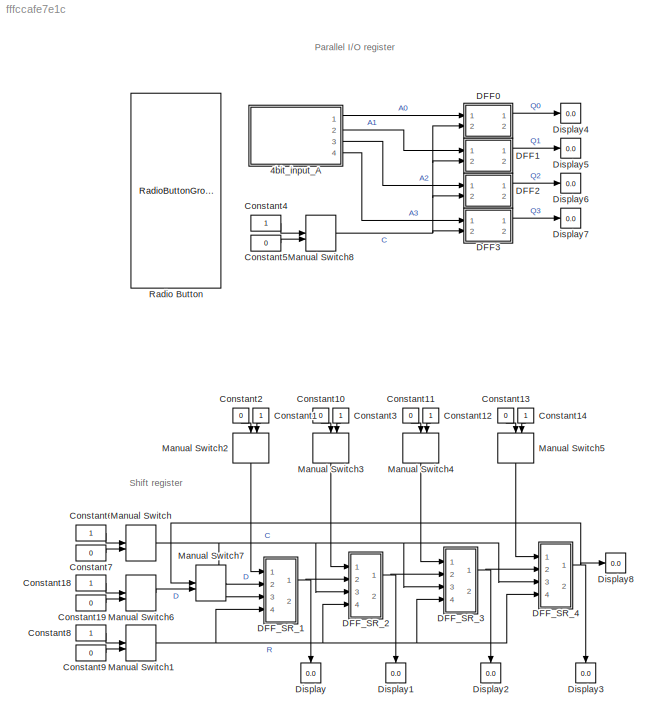
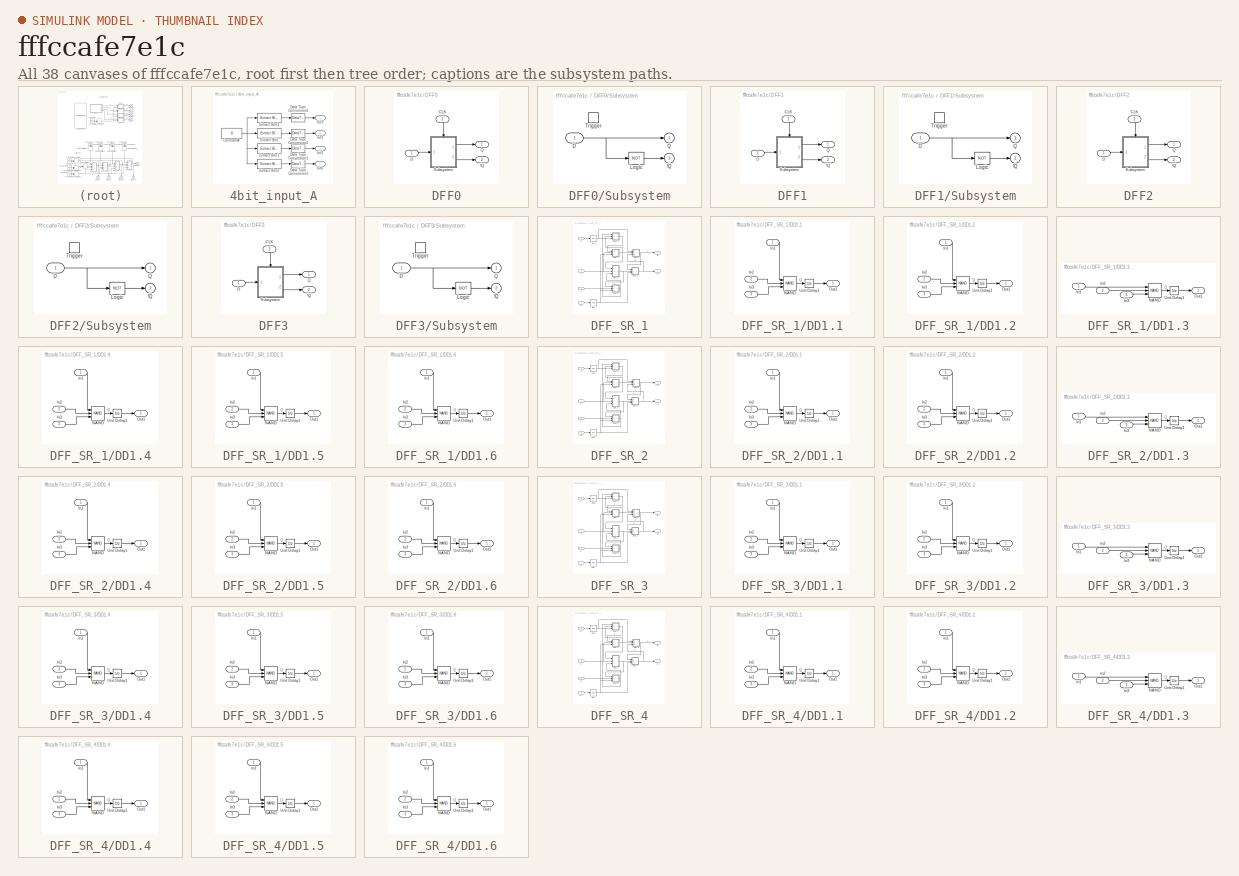
[diagram: thumbnail index - all 38 canvases of the model, root first then tree order]
MODEL slx_fffccafe7e1c
KIND model
CONFIG AbsTol = auto
CONFIG EnableMultiTasking = off
CONFIG FixedStep = 1
CONFIG MaxStep = 1
CONFIG MinStep = auto
CONFIG RelTol = 1e-3
CONFIG SampleTimeConstraint = Unconstrained
CONFIG Solver = FixedStepAuto
CONFIG SolverName = FixedStepAuto
CONFIG StartTime = 0.0
CONFIG StopTime = inf
BLOCK [SubSystem] 4bit_input_A
  Ports = [0, 4]
  RequestExecContextInheritance = off
BLOCK [Constant] 4bit_input_A/ConstantA
  OutDataTypeStr = uint8
  OutMax = 15
  OutMin = 0
  Value = 0
BLOCK [DataTypeConversion] 4bit_input_A/Data Type Conversion1
  OutDataTypeStr = boolean
  RndMeth = Floor
  SaturateOnIntegerOverflow = off
BLOCK [DataTypeConversion] 4bit_input_A/Data Type Conversion2
  OutDataTypeStr = boolean
  RndMeth = Floor
  SaturateOnIntegerOverflow = off
BLOCK [DataTypeConversion] 4bit_input_A/Data Type Conversion3
  OutDataTypeStr = boolean
  RndMeth = Floor
  SaturateOnIntegerOverflow = off
BLOCK [DataTypeConversion] 4bit_input_A/Data Type Conversion4
  OutDataTypeStr = boolean
  RndMeth = Floor
  SaturateOnIntegerOverflow = off
BLOCK [Reference] 4bit_input_A/Extract Bits  REF=simulink/Logic and Bit
Operations/Extract Bits
  Ports = [1, 1]
  SourceBlock = simulink/Logic and Bit\nOperations/Extract Bits
  SourceProductBaseCode = SL
  SourceProductName = Simulink
  SourceType = Extract Bits
BLOCK [Reference] 4bit_input_A/Extract Bits1  REF=simulink/Logic and Bit
Operations/Extract Bits
  Ports = [1, 1]
  SourceBlock = simulink/Logic and Bit\nOperations/Extract Bits
  SourceProductBaseCode = SL
  SourceProductName = Simulink
  SourceType = Extract Bits
BLOCK [Reference] 4bit_input_A/Extract Bits2  REF=simulink/Logic and Bit
Operations/Extract Bits
  Ports = [1, 1]
  SourceBlock = simulink/Logic and Bit\nOperations/Extract Bits
  SourceProductBaseCode = SL
  SourceProductName = Simulink
  SourceType = Extract Bits
BLOCK [Reference] 4bit_input_A/Extract Bits3  REF=simulink/Logic and Bit
Operations/Extract Bits
  Ports = [1, 1]
  SourceBlock = simulink/Logic and Bit\nOperations/Extract Bits
  SourceProductBaseCode = SL
  SourceProductName = Simulink
  SourceType = Extract Bits
BLOCK [Outport] 4bit_input_A/bit0
  IconDisplay = Port number
BLOCK [Outport] 4bit_input_A/bit1
  IconDisplay = Port number
  Port = 2
BLOCK [Outport] 4bit_input_A/bit2
  IconDisplay = Port number
  Port = 3
BLOCK [Outport] 4bit_input_A/bit3
  IconDisplay = Port number
  Port = 4
BLOCK [Constant] Constant1
  OutDataTypeStr = boolean
BLOCK [Constant] Constant10
  OutDataTypeStr = boolean
  Value = 0
BLOCK [Constant] Constant11
  OutDataTypeStr = boolean
  Value = 0
BLOCK [Constant] Constant12
  OutDataTypeStr = boolean
BLOCK [Constant] Constant13
  OutDataTypeStr = boolean
  Value = 0
BLOCK [Constant] Constant14
  OutDataTypeStr = boolean
BLOCK [Constant] Constant18
  OutDataTypeStr = boolean
BLOCK [Constant] Constant19
  OutDataTypeStr = boolean
  Value = 0
BLOCK [Constant] Constant2
  OutDataTypeStr = boolean
  Value = 0
BLOCK [Constant] Constant3
  OutDataTypeStr = boolean
BLOCK [Constant] Constant4
  OutDataTypeStr = boolean
BLOCK [Constant] Constant5
  OutDataTypeStr = boolean
  Value = 0
BLOCK [Constant] Constant6
  OutDataTypeStr = boolean
BLOCK [Constant] Constant7
  OutDataTypeStr = boolean
  Value = 0
BLOCK [Constant] Constant8
  OutDataTypeStr = boolean
BLOCK [Constant] Constant9
  OutDataTypeStr = boolean
  Value = 0
BLOCK [SubSystem] DFF0
  Ports = [2, 2]
  RequestExecContextInheritance = off
BLOCK [Outport] DFF0/!Q
  IconDisplay = Port number
  InitialOutput = 1
  Port = 2
  VectorParamsAs1DForOutWhenUnconnected = off
BLOCK [Inport] DFF0/CLK
  IconDisplay = Port number
  Port = 2
BLOCK [Inport] DFF0/D
  IconDisplay = Port number
BLOCK [Outport] DFF0/Q
  IconDisplay = Port number
  InitialOutput = 0
  VectorParamsAs1DForOutWhenUnconnected = off
BLOCK [SubSystem] DFF0/Subsystem
  Ports = [1, 2, 0, 1]
  RequestExecContextInheritance = off
BLOCK [Outport] DFF0/Subsystem/!Q
  IconDisplay = Port number
  InitialOutput = 1
  OutputWhenDisabled = reset
  Port = 2
  VectorParamsAs1DForOutWhenUnconnected = off
BLOCK [Inport] DFF0/Subsystem/D
  IconDisplay = Port number
  LatchByDelayingOutsideSignal = on
BLOCK [Logic] DFF0/Subsystem/Logic
  Inputs = 1
  Operator = NOT
  Ports = [1, 1]
BLOCK [Outport] DFF0/Subsystem/Q
  IconDisplay = Port number
  InitialOutput = 0
  OutputWhenDisabled = reset
  VectorParamsAs1DForOutWhenUnconnected = off
BLOCK [TriggerPort] DFF0/Subsystem/Trigger
  Ports = []
  StatesWhenEnabling = reset
  VariantControl = Variant
BLOCK [SubSystem] DFF1
  Ports = [2, 2]
  RequestExecContextInheritance = off
BLOCK [Outport] DFF1/!Q
  IconDisplay = Port number
  InitialOutput = 1
  Port = 2
  VectorParamsAs1DForOutWhenUnconnected = off
BLOCK [Inport] DFF1/CLK
  IconDisplay = Port number
  Port = 2
BLOCK [Inport] DFF1/D
  IconDisplay = Port number
BLOCK [Outport] DFF1/Q
  IconDisplay = Port number
  InitialOutput = 0
  VectorParamsAs1DForOutWhenUnconnected = off
BLOCK [SubSystem] DFF1/Subsystem
  Ports = [1, 2, 0, 1]
  RequestExecContextInheritance = off
BLOCK [Outport] DFF1/Subsystem/!Q
  IconDisplay = Port number
  InitialOutput = 1
  OutputWhenDisabled = reset
  Port = 2
  VectorParamsAs1DForOutWhenUnconnected = off
BLOCK [Inport] DFF1/Subsystem/D
  IconDisplay = Port number
  LatchByDelayingOutsideSignal = on
BLOCK [Logic] DFF1/Subsystem/Logic
  Inputs = 1
  Operator = NOT
  Ports = [1, 1]
BLOCK [Outport] DFF1/Subsystem/Q
  IconDisplay = Port number
  InitialOutput = 0
  OutputWhenDisabled = reset
  VectorParamsAs1DForOutWhenUnconnected = off
BLOCK [TriggerPort] DFF1/Subsystem/Trigger
  Ports = []
  StatesWhenEnabling = reset
  VariantControl = Variant
BLOCK [SubSystem] DFF2
  Ports = [2, 2]
  RequestExecContextInheritance = off
BLOCK [Outport] DFF2/!Q
  IconDisplay = Port number
  InitialOutput = 1
  Port = 2
  VectorParamsAs1DForOutWhenUnconnected = off
BLOCK [Inport] DFF2/CLK
  IconDisplay = Port number
  Port = 2
BLOCK [Inport] DFF2/D
  IconDisplay = Port number
BLOCK [Outport] DFF2/Q
  IconDisplay = Port number
  InitialOutput = 0
  VectorParamsAs1DForOutWhenUnconnected = off
BLOCK [SubSystem] DFF2/Subsystem
  Ports = [1, 2, 0, 1]
  RequestExecContextInheritance = off
BLOCK [Outport] DFF2/Subsystem/!Q
  IconDisplay = Port number
  InitialOutput = 1
  OutputWhenDisabled = reset
  Port = 2
  VectorParamsAs1DForOutWhenUnconnected = off
BLOCK [Inport] DFF2/Subsystem/D
  IconDisplay = Port number
  LatchByDelayingOutsideSignal = on
BLOCK [Logic] DFF2/Subsystem/Logic
  Inputs = 1
  Operator = NOT
  Ports = [1, 1]
BLOCK [Outport] DFF2/Subsystem/Q
  IconDisplay = Port number
  InitialOutput = 0
  OutputWhenDisabled = reset
  VectorParamsAs1DForOutWhenUnconnected = off
BLOCK [TriggerPort] DFF2/Subsystem/Trigger
  Ports = []
  StatesWhenEnabling = reset
  VariantControl = Variant
BLOCK [SubSystem] DFF3
  Ports = [2, 2]
  RequestExecContextInheritance = off
BLOCK [Outport] DFF3/!Q
  IconDisplay = Port number
  InitialOutput = 1
  Port = 2
  VectorParamsAs1DForOutWhenUnconnected = off
BLOCK [Inport] DFF3/CLK
  IconDisplay = Port number
  Port = 2
BLOCK [Inport] DFF3/D
  IconDisplay = Port number
BLOCK [Outport] DFF3/Q
  IconDisplay = Port number
  InitialOutput = 0
  VectorParamsAs1DForOutWhenUnconnected = off
BLOCK [SubSystem] DFF3/Subsystem
  Ports = [1, 2, 0, 1]
  RequestExecContextInheritance = off
BLOCK [Outport] DFF3/Subsystem/!Q
  IconDisplay = Port number
  InitialOutput = 1
  OutputWhenDisabled = reset
  Port = 2
  VectorParamsAs1DForOutWhenUnconnected = off
BLOCK [Inport] DFF3/Subsystem/D
  IconDisplay = Port number
  LatchByDelayingOutsideSignal = on
BLOCK [Logic] DFF3/Subsystem/Logic
  Inputs = 1
  Operator = NOT
  Ports = [1, 1]
BLOCK [Outport] DFF3/Subsystem/Q
  IconDisplay = Port number
  InitialOutput = 0
  OutputWhenDisabled = reset
  VectorParamsAs1DForOutWhenUnconnected = off
BLOCK [TriggerPort] DFF3/Subsystem/Trigger
  Ports = []
  StatesWhenEnabling = reset
  VariantControl = Variant
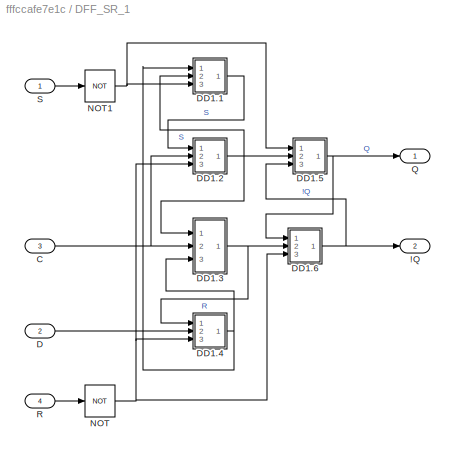
BLOCK [SubSystem] DFF_SR_1
  Ports = [4, 2]
  RequestExecContextInheritance = off
BLOCK [Outport] DFF_SR_1/!Q
  IconDisplay = Port number
  Port = 2
BLOCK [Inport] DFF_SR_1/C
  IconDisplay = Port number
  Port = 3
BLOCK [Inport] DFF_SR_1/D
  IconDisplay = Port number
  Port = 2
BLOCK [SubSystem] DFF_SR_1/DD1.1
  Ports = [3, 1]
  RequestExecContextInheritance = off
BLOCK [Inport] DFF_SR_1/DD1.1/In1
  IconDisplay = Port number
BLOCK [Inport] DFF_SR_1/DD1.1/In2
  IconDisplay = Port number
  Port = 2
BLOCK [Inport] DFF_SR_1/DD1.1/In3
  IconDisplay = Port number
  Port = 3
BLOCK [Logic] DFF_SR_1/DD1.1/NAND
  AllPortsSameDT = off
  IconShape = distinctive
  Inputs = 3
  Operator = NAND
  OutDataTypeStr = boolean
  Ports = [3, 1]
BLOCK [Outport] DFF_SR_1/DD1.1/Out1
  IconDisplay = Port number
BLOCK [UnitDelay] DFF_SR_1/DD1.1/Unit Delay1
  HasFrameUpgradeWarning = on
  SampleTime = -1
BLOCK [SubSystem] DFF_SR_1/DD1.2
  Ports = [3, 1]
  RequestExecContextInheritance = off
BLOCK [Inport] DFF_SR_1/DD1.2/In1
  IconDisplay = Port number
BLOCK [Inport] DFF_SR_1/DD1.2/In2
  IconDisplay = Port number
  Port = 2
BLOCK [Inport] DFF_SR_1/DD1.2/In3
  IconDisplay = Port number
  Port = 3
BLOCK [Logic] DFF_SR_1/DD1.2/NAND
  AllPortsSameDT = off
  IconShape = distinctive
  Inputs = 3
  Operator = NAND
  OutDataTypeStr = boolean
  Ports = [3, 1]
BLOCK [Outport] DFF_SR_1/DD1.2/Out1
  IconDisplay = Port number
BLOCK [UnitDelay] DFF_SR_1/DD1.2/Unit Delay1
  HasFrameUpgradeWarning = on
  SampleTime = -1
BLOCK [SubSystem] DFF_SR_1/DD1.3
  Ports = [3, 1]
  RequestExecContextInheritance = off
BLOCK [Inport] DFF_SR_1/DD1.3/In1
  IconDisplay = Port number
BLOCK [Inport] DFF_SR_1/DD1.3/In2
  IconDisplay = Port number
  Port = 2
BLOCK [Inport] DFF_SR_1/DD1.3/In3
  IconDisplay = Port number
  Port = 3
BLOCK [Logic] DFF_SR_1/DD1.3/NAND
  AllPortsSameDT = off
  IconShape = distinctive
  Inputs = 3
  Operator = NAND
  OutDataTypeStr = boolean
  Ports = [3, 1]
BLOCK [Outport] DFF_SR_1/DD1.3/Out1
  IconDisplay = Port number
BLOCK [UnitDelay] DFF_SR_1/DD1.3/Unit Delay1
  HasFrameUpgradeWarning = on
  SampleTime = -1
BLOCK [SubSystem] DFF_SR_1/DD1.4
  Ports = [3, 1]
  RequestExecContextInheritance = off
BLOCK [Inport] DFF_SR_1/DD1.4/In1
  IconDisplay = Port number
BLOCK [Inport] DFF_SR_1/DD1.4/In2
  IconDisplay = Port number
  Port = 2
BLOCK [Inport] DFF_SR_1/DD1.4/In3
  IconDisplay = Port number
  Port = 3
BLOCK [Logic] DFF_SR_1/DD1.4/NAND
  AllPortsSameDT = off
  IconShape = distinctive
  Inputs = 3
  Operator = NAND
  OutDataTypeStr = boolean
  Ports = [3, 1]
BLOCK [Outport] DFF_SR_1/DD1.4/Out1
  IconDisplay = Port number
BLOCK [UnitDelay] DFF_SR_1/DD1.4/Unit Delay1
  HasFrameUpgradeWarning = on
  SampleTime = -1
BLOCK [SubSystem] DFF_SR_1/DD1.5
  Ports = [3, 1]
  RequestExecContextInheritance = off
BLOCK [Inport] DFF_SR_1/DD1.5/In1
  IconDisplay = Port number
BLOCK [Inport] DFF_SR_1/DD1.5/In2
  IconDisplay = Port number
  Port = 2
BLOCK [Inport] DFF_SR_1/DD1.5/In3
  IconDisplay = Port number
  Port = 3
BLOCK [Logic] DFF_SR_1/DD1.5/NAND
  AllPortsSameDT = off
  IconShape = distinctive
  Inputs = 3
  Operator = NAND
  OutDataTypeStr = boolean
  Ports = [3, 1]
BLOCK [Outport] DFF_SR_1/DD1.5/Out1
  IconDisplay = Port number
BLOCK [UnitDelay] DFF_SR_1/DD1.5/Unit Delay1
  HasFrameUpgradeWarning = on
  SampleTime = -1
BLOCK [SubSystem] DFF_SR_1/DD1.6
  Ports = [3, 1]
  RequestExecContextInheritance = off
BLOCK [Inport] DFF_SR_1/DD1.6/In1
  IconDisplay = Port number
BLOCK [Inport] DFF_SR_1/DD1.6/In2
  IconDisplay = Port number
  Port = 2
BLOCK [Inport] DFF_SR_1/DD1.6/In3
  IconDisplay = Port number
  Port = 3
BLOCK [Logic] DFF_SR_1/DD1.6/NAND
  AllPortsSameDT = off
  IconShape = distinctive
  Inputs = 3
  Operator = NAND
  OutDataTypeStr = boolean
  Ports = [3, 1]
BLOCK [Outport] DFF_SR_1/DD1.6/Out1
  IconDisplay = Port number
BLOCK [UnitDelay] DFF_SR_1/DD1.6/Unit Delay1
  HasFrameUpgradeWarning = on
  SampleTime = -1
BLOCK [Logic] DFF_SR_1/NOT
  AllPortsSameDT = off
  IconShape = distinctive
  Operator = NOT
  OutDataTypeStr = boolean
  Ports = [1, 1]
BLOCK [Logic] DFF_SR_1/NOT1
  AllPortsSameDT = off
  IconShape = distinctive
  Operator = NOT
  OutDataTypeStr = boolean
  Ports = [1, 1]
BLOCK [Outport] DFF_SR_1/Q
  IconDisplay = Port number
BLOCK [Inport] DFF_SR_1/R
  IconDisplay = Port number
  Port = 4
BLOCK [Inport] DFF_SR_1/S
  IconDisplay = Port number
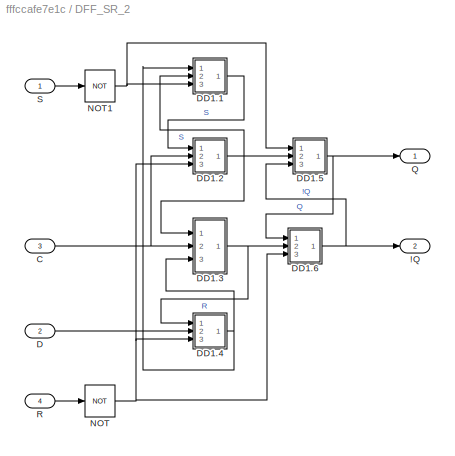
BLOCK [SubSystem] DFF_SR_2
  Ports = [4, 2]
  RequestExecContextInheritance = off
BLOCK [Outport] DFF_SR_2/!Q
  IconDisplay = Port number
  Port = 2
BLOCK [Inport] DFF_SR_2/C
  IconDisplay = Port number
  Port = 3
BLOCK [Inport] DFF_SR_2/D
  IconDisplay = Port number
  Port = 2
BLOCK [SubSystem] DFF_SR_2/DD1.1
  Ports = [3, 1]
  RequestExecContextInheritance = off
BLOCK [Inport] DFF_SR_2/DD1.1/In1
  IconDisplay = Port number
BLOCK [Inport] DFF_SR_2/DD1.1/In2
  IconDisplay = Port number
  Port = 2
BLOCK [Inport] DFF_SR_2/DD1.1/In3
  IconDisplay = Port number
  Port = 3
BLOCK [Logic] DFF_SR_2/DD1.1/NAND
  AllPortsSameDT = off
  IconShape = distinctive
  Inputs = 3
  Operator = NAND
  OutDataTypeStr = boolean
  Ports = [3, 1]
BLOCK [Outport] DFF_SR_2/DD1.1/Out1
  IconDisplay = Port number
BLOCK [UnitDelay] DFF_SR_2/DD1.1/Unit Delay1
  HasFrameUpgradeWarning = on
  SampleTime = -1
BLOCK [SubSystem] DFF_SR_2/DD1.2
  Ports = [3, 1]
  RequestExecContextInheritance = off
BLOCK [Inport] DFF_SR_2/DD1.2/In1
  IconDisplay = Port number
BLOCK [Inport] DFF_SR_2/DD1.2/In2
  IconDisplay = Port number
  Port = 2
BLOCK [Inport] DFF_SR_2/DD1.2/In3
  IconDisplay = Port number
  Port = 3
BLOCK [Logic] DFF_SR_2/DD1.2/NAND
  AllPortsSameDT = off
  IconShape = distinctive
  Inputs = 3
  Operator = NAND
  OutDataTypeStr = boolean
  Ports = [3, 1]
BLOCK [Outport] DFF_SR_2/DD1.2/Out1
  IconDisplay = Port number
BLOCK [UnitDelay] DFF_SR_2/DD1.2/Unit Delay1
  HasFrameUpgradeWarning = on
  SampleTime = -1
BLOCK [SubSystem] DFF_SR_2/DD1.3
  Ports = [3, 1]
  RequestExecContextInheritance = off
BLOCK [Inport] DFF_SR_2/DD1.3/In1
  IconDisplay = Port number
BLOCK [Inport] DFF_SR_2/DD1.3/In2
  IconDisplay = Port number
  Port = 2
BLOCK [Inport] DFF_SR_2/DD1.3/In3
  IconDisplay = Port number
  Port = 3
BLOCK [Logic] DFF_SR_2/DD1.3/NAND
  AllPortsSameDT = off
  IconShape = distinctive
  Inputs = 3
  Operator = NAND
  OutDataTypeStr = boolean
  Ports = [3, 1]
BLOCK [Outport] DFF_SR_2/DD1.3/Out1
  IconDisplay = Port number
BLOCK [UnitDelay] DFF_SR_2/DD1.3/Unit Delay1
  HasFrameUpgradeWarning = on
  SampleTime = -1
BLOCK [SubSystem] DFF_SR_2/DD1.4
  Ports = [3, 1]
  RequestExecContextInheritance = off
BLOCK [Inport] DFF_SR_2/DD1.4/In1
  IconDisplay = Port number
BLOCK [Inport] DFF_SR_2/DD1.4/In2
  IconDisplay = Port number
  Port = 2
BLOCK [Inport] DFF_SR_2/DD1.4/In3
  IconDisplay = Port number
  Port = 3
BLOCK [Logic] DFF_SR_2/DD1.4/NAND
  AllPortsSameDT = off
  IconShape = distinctive
  Inputs = 3
  Operator = NAND
  OutDataTypeStr = boolean
  Ports = [3, 1]
BLOCK [Outport] DFF_SR_2/DD1.4/Out1
  IconDisplay = Port number
BLOCK [UnitDelay] DFF_SR_2/DD1.4/Unit Delay1
  HasFrameUpgradeWarning = on
  SampleTime = -1
BLOCK [SubSystem] DFF_SR_2/DD1.5
  Ports = [3, 1]
  RequestExecContextInheritance = off
BLOCK [Inport] DFF_SR_2/DD1.5/In1
  IconDisplay = Port number
BLOCK [Inport] DFF_SR_2/DD1.5/In2
  IconDisplay = Port number
  Port = 2
BLOCK [Inport] DFF_SR_2/DD1.5/In3
  IconDisplay = Port number
  Port = 3
BLOCK [Logic] DFF_SR_2/DD1.5/NAND
  AllPortsSameDT = off
  IconShape = distinctive
  Inputs = 3
  Operator = NAND
  OutDataTypeStr = boolean
  Ports = [3, 1]
BLOCK [Outport] DFF_SR_2/DD1.5/Out1
  IconDisplay = Port number
BLOCK [UnitDelay] DFF_SR_2/DD1.5/Unit Delay1
  HasFrameUpgradeWarning = on
  SampleTime = -1
BLOCK [SubSystem] DFF_SR_2/DD1.6
  Ports = [3, 1]
  RequestExecContextInheritance = off
BLOCK [Inport] DFF_SR_2/DD1.6/In1
  IconDisplay = Port number
BLOCK [Inport] DFF_SR_2/DD1.6/In2
  IconDisplay = Port number
  Port = 2
BLOCK [Inport] DFF_SR_2/DD1.6/In3
  IconDisplay = Port number
  Port = 3
BLOCK [Logic] DFF_SR_2/DD1.6/NAND
  AllPortsSameDT = off
  IconShape = distinctive
  Inputs = 3
  Operator = NAND
  OutDataTypeStr = boolean
  Ports = [3, 1]
BLOCK [Outport] DFF_SR_2/DD1.6/Out1
  IconDisplay = Port number
BLOCK [UnitDelay] DFF_SR_2/DD1.6/Unit Delay1
  HasFrameUpgradeWarning = on
  SampleTime = -1
BLOCK [Logic] DFF_SR_2/NOT
  AllPortsSameDT = off
  IconShape = distinctive
  Operator = NOT
  OutDataTypeStr = boolean
  Ports = [1, 1]
BLOCK [Logic] DFF_SR_2/NOT1
  AllPortsSameDT = off
  IconShape = distinctive
  Operator = NOT
  OutDataTypeStr = boolean
  Ports = [1, 1]
BLOCK [Outport] DFF_SR_2/Q
  IconDisplay = Port number
BLOCK [Inport] DFF_SR_2/R
  IconDisplay = Port number
  Port = 4
BLOCK [Inport] DFF_SR_2/S
  IconDisplay = Port number
BLOCK [SubSystem] DFF_SR_3
  Ports = [4, 2]
  RequestExecContextInheritance = off
BLOCK [Outport] DFF_SR_3/!Q
  IconDisplay = Port number
  Port = 2
BLOCK [Inport] DFF_SR_3/C
  IconDisplay = Port number
  Port = 3
BLOCK [Inport] DFF_SR_3/D
  IconDisplay = Port number
  Port = 2
BLOCK [SubSystem] DFF_SR_3/DD1.1
  Ports = [3, 1]
  RequestExecContextInheritance = off
BLOCK [Inport] DFF_SR_3/DD1.1/In1
  IconDisplay = Port number
BLOCK [Inport] DFF_SR_3/DD1.1/In2
  IconDisplay = Port number
  Port = 2
BLOCK [Inport] DFF_SR_3/DD1.1/In3
  IconDisplay = Port number
  Port = 3
BLOCK [Logic] DFF_SR_3/DD1.1/NAND
  AllPortsSameDT = off
  IconShape = distinctive
  Inputs = 3
  Operator = NAND
  OutDataTypeStr = boolean
  Ports = [3, 1]
BLOCK [Outport] DFF_SR_3/DD1.1/Out1
  IconDisplay = Port number
BLOCK [UnitDelay] DFF_SR_3/DD1.1/Unit Delay1
  HasFrameUpgradeWarning = on
  SampleTime = -1
BLOCK [SubSystem] DFF_SR_3/DD1.2
  Ports = [3, 1]
  RequestExecContextInheritance = off
BLOCK [Inport] DFF_SR_3/DD1.2/In1
  IconDisplay = Port number
BLOCK [Inport] DFF_SR_3/DD1.2/In2
  IconDisplay = Port number
  Port = 2
BLOCK [Inport] DFF_SR_3/DD1.2/In3
  IconDisplay = Port number
  Port = 3
BLOCK [Logic] DFF_SR_3/DD1.2/NAND
  AllPortsSameDT = off
  IconShape = distinctive
  Inputs = 3
  Operator = NAND
  OutDataTypeStr = boolean
  Ports = [3, 1]
BLOCK [Outport] DFF_SR_3/DD1.2/Out1
  IconDisplay = Port number
BLOCK [UnitDelay] DFF_SR_3/DD1.2/Unit Delay1
  HasFrameUpgradeWarning = on
  SampleTime = -1
BLOCK [SubSystem] DFF_SR_3/DD1.3
  Ports = [3, 1]
  RequestExecContextInheritance = off
BLOCK [Inport] DFF_SR_3/DD1.3/In1
  IconDisplay = Port number
BLOCK [Inport] DFF_SR_3/DD1.3/In2
  IconDisplay = Port number
  Port = 2
BLOCK [Inport] DFF_SR_3/DD1.3/In3
  IconDisplay = Port number
  Port = 3
BLOCK [Logic] DFF_SR_3/DD1.3/NAND
  AllPortsSameDT = off
  IconShape = distinctive
  Inputs = 3
  Operator = NAND
  OutDataTypeStr = boolean
  Ports = [3, 1]
BLOCK [Outport] DFF_SR_3/DD1.3/Out1
  IconDisplay = Port number
BLOCK [UnitDelay] DFF_SR_3/DD1.3/Unit Delay1
  HasFrameUpgradeWarning = on
  SampleTime = -1
BLOCK [SubSystem] DFF_SR_3/DD1.4
  Ports = [3, 1]
  RequestExecContextInheritance = off
BLOCK [Inport] DFF_SR_3/DD1.4/In1
  IconDisplay = Port number
BLOCK [Inport] DFF_SR_3/DD1.4/In2
  IconDisplay = Port number
  Port = 2
BLOCK [Inport] DFF_SR_3/DD1.4/In3
  IconDisplay = Port number
  Port = 3
BLOCK [Logic] DFF_SR_3/DD1.4/NAND
  AllPortsSameDT = off
  IconShape = distinctive
  Inputs = 3
  Operator = NAND
  OutDataTypeStr = boolean
  Ports = [3, 1]
BLOCK [Outport] DFF_SR_3/DD1.4/Out1
  IconDisplay = Port number
BLOCK [UnitDelay] DFF_SR_3/DD1.4/Unit Delay1
  HasFrameUpgradeWarning = on
  SampleTime = -1
BLOCK [SubSystem] DFF_SR_3/DD1.5
  Ports = [3, 1]
  RequestExecContextInheritance = off
BLOCK [Inport] DFF_SR_3/DD1.5/In1
  IconDisplay = Port number
BLOCK [Inport] DFF_SR_3/DD1.5/In2
  IconDisplay = Port number
  Port = 2
BLOCK [Inport] DFF_SR_3/DD1.5/In3
  IconDisplay = Port number
  Port = 3
BLOCK [Logic] DFF_SR_3/DD1.5/NAND
  AllPortsSameDT = off
  IconShape = distinctive
  Inputs = 3
  Operator = NAND
  OutDataTypeStr = boolean
  Ports = [3, 1]
BLOCK [Outport] DFF_SR_3/DD1.5/Out1
  IconDisplay = Port number
BLOCK [UnitDelay] DFF_SR_3/DD1.5/Unit Delay1
  HasFrameUpgradeWarning = on
  SampleTime = -1
BLOCK [SubSystem] DFF_SR_3/DD1.6
  Ports = [3, 1]
  RequestExecContextInheritance = off
BLOCK [Inport] DFF_SR_3/DD1.6/In1
  IconDisplay = Port number
BLOCK [Inport] DFF_SR_3/DD1.6/In2
  IconDisplay = Port number
  Port = 2
BLOCK [Inport] DFF_SR_3/DD1.6/In3
  IconDisplay = Port number
  Port = 3
BLOCK [Logic] DFF_SR_3/DD1.6/NAND
  AllPortsSameDT = off
  IconShape = distinctive
  Inputs = 3
  Operator = NAND
  OutDataTypeStr = boolean
  Ports = [3, 1]
BLOCK [Outport] DFF_SR_3/DD1.6/Out1
  IconDisplay = Port number
BLOCK [UnitDelay] DFF_SR_3/DD1.6/Unit Delay1
  HasFrameUpgradeWarning = on
  SampleTime = -1
BLOCK [Logic] DFF_SR_3/NOT
  AllPortsSameDT = off
  IconShape = distinctive
  Operator = NOT
  OutDataTypeStr = boolean
  Ports = [1, 1]
BLOCK [Logic] DFF_SR_3/NOT1
  AllPortsSameDT = off
  IconShape = distinctive
  Operator = NOT
  OutDataTypeStr = boolean
  Ports = [1, 1]
BLOCK [Outport] DFF_SR_3/Q
  IconDisplay = Port number
BLOCK [Inport] DFF_SR_3/R
  IconDisplay = Port number
  Port = 4
BLOCK [Inport] DFF_SR_3/S
  IconDisplay = Port number
BLOCK [SubSystem] DFF_SR_4
  Ports = [4, 2]
  RequestExecContextInheritance = off
BLOCK [Outport] DFF_SR_4/!Q
  IconDisplay = Port number
  Port = 2
BLOCK [Inport] DFF_SR_4/C
  IconDisplay = Port number
  Port = 3
BLOCK [Inport] DFF_SR_4/D
  IconDisplay = Port number
  Port = 2
BLOCK [SubSystem] DFF_SR_4/DD1.1
  Ports = [3, 1]
  RequestExecContextInheritance = off
BLOCK [Inport] DFF_SR_4/DD1.1/In1
  IconDisplay = Port number
BLOCK [Inport] DFF_SR_4/DD1.1/In2
  IconDisplay = Port number
  Port = 2
BLOCK [Inport] DFF_SR_4/DD1.1/In3
  IconDisplay = Port number
  Port = 3
BLOCK [Logic] DFF_SR_4/DD1.1/NAND
  AllPortsSameDT = off
  IconShape = distinctive
  Inputs = 3
  Operator = NAND
  OutDataTypeStr = boolean
  Ports = [3, 1]
BLOCK [Outport] DFF_SR_4/DD1.1/Out1
  IconDisplay = Port number
BLOCK [UnitDelay] DFF_SR_4/DD1.1/Unit Delay1
  HasFrameUpgradeWarning = on
  SampleTime = -1
BLOCK [SubSystem] DFF_SR_4/DD1.2
  Ports = [3, 1]
  RequestExecContextInheritance = off
BLOCK [Inport] DFF_SR_4/DD1.2/In1
  IconDisplay = Port number
BLOCK [Inport] DFF_SR_4/DD1.2/In2
  IconDisplay = Port number
  Port = 2
BLOCK [Inport] DFF_SR_4/DD1.2/In3
  IconDisplay = Port number
  Port = 3
BLOCK [Logic] DFF_SR_4/DD1.2/NAND
  AllPortsSameDT = off
  IconShape = distinctive
  Inputs = 3
  Operator = NAND
  OutDataTypeStr = boolean
  Ports = [3, 1]
BLOCK [Outport] DFF_SR_4/DD1.2/Out1
  IconDisplay = Port number
BLOCK [UnitDelay] DFF_SR_4/DD1.2/Unit Delay1
  HasFrameUpgradeWarning = on
  SampleTime = -1
BLOCK [SubSystem] DFF_SR_4/DD1.3
  Ports = [3, 1]
  RequestExecContextInheritance = off
BLOCK [Inport] DFF_SR_4/DD1.3/In1
  IconDisplay = Port number
BLOCK [Inport] DFF_SR_4/DD1.3/In2
  IconDisplay = Port number
  Port = 2
BLOCK [Inport] DFF_SR_4/DD1.3/In3
  IconDisplay = Port number
  Port = 3
BLOCK [Logic] DFF_SR_4/DD1.3/NAND
  AllPortsSameDT = off
  IconShape = distinctive
  Inputs = 3
  Operator = NAND
  OutDataTypeStr = boolean
  Ports = [3, 1]
BLOCK [Outport] DFF_SR_4/DD1.3/Out1
  IconDisplay = Port number
BLOCK [UnitDelay] DFF_SR_4/DD1.3/Unit Delay1
  HasFrameUpgradeWarning = on
  SampleTime = -1
BLOCK [SubSystem] DFF_SR_4/DD1.4
  Ports = [3, 1]
  RequestExecContextInheritance = off
BLOCK [Inport] DFF_SR_4/DD1.4/In1
  IconDisplay = Port number
BLOCK [Inport] DFF_SR_4/DD1.4/In2
  IconDisplay = Port number
  Port = 2
BLOCK [Inport] DFF_SR_4/DD1.4/In3
  IconDisplay = Port number
  Port = 3
BLOCK [Logic] DFF_SR_4/DD1.4/NAND
  AllPortsSameDT = off
  IconShape = distinctive
  Inputs = 3
  Operator = NAND
  OutDataTypeStr = boolean
  Ports = [3, 1]
BLOCK [Outport] DFF_SR_4/DD1.4/Out1
  IconDisplay = Port number
BLOCK [UnitDelay] DFF_SR_4/DD1.4/Unit Delay1
  HasFrameUpgradeWarning = on
  SampleTime = -1
BLOCK [SubSystem] DFF_SR_4/DD1.5
  Ports = [3, 1]
  RequestExecContextInheritance = off
BLOCK [Inport] DFF_SR_4/DD1.5/In1
  IconDisplay = Port number
BLOCK [Inport] DFF_SR_4/DD1.5/In2
  IconDisplay = Port number
  Port = 2
BLOCK [Inport] DFF_SR_4/DD1.5/In3
  IconDisplay = Port number
  Port = 3
BLOCK [Logic] DFF_SR_4/DD1.5/NAND
  AllPortsSameDT = off
  IconShape = distinctive
  Inputs = 3
  Operator = NAND
  OutDataTypeStr = boolean
  Ports = [3, 1]
BLOCK [Outport] DFF_SR_4/DD1.5/Out1
  IconDisplay = Port number
BLOCK [UnitDelay] DFF_SR_4/DD1.5/Unit Delay1
  HasFrameUpgradeWarning = on
  SampleTime = -1
BLOCK [SubSystem] DFF_SR_4/DD1.6
  Ports = [3, 1]
  RequestExecContextInheritance = off
BLOCK [Inport] DFF_SR_4/DD1.6/In1
  IconDisplay = Port number
BLOCK [Inport] DFF_SR_4/DD1.6/In2
  IconDisplay = Port number
  Port = 2
BLOCK [Inport] DFF_SR_4/DD1.6/In3
  IconDisplay = Port number
  Port = 3
BLOCK [Logic] DFF_SR_4/DD1.6/NAND
  AllPortsSameDT = off
  IconShape = distinctive
  Inputs = 3
  Operator = NAND
  OutDataTypeStr = boolean
  Ports = [3, 1]
BLOCK [Outport] DFF_SR_4/DD1.6/Out1
  IconDisplay = Port number
BLOCK [UnitDelay] DFF_SR_4/DD1.6/Unit Delay1
  HasFrameUpgradeWarning = on
  SampleTime = -1
BLOCK [Logic] DFF_SR_4/NOT
  AllPortsSameDT = off
  IconShape = distinctive
  Operator = NOT
  OutDataTypeStr = boolean
  Ports = [1, 1]
BLOCK [Logic] DFF_SR_4/NOT1
  AllPortsSameDT = off
  IconShape = distinctive
  Operator = NOT
  OutDataTypeStr = boolean
  Ports = [1, 1]
BLOCK [Outport] DFF_SR_4/Q
  IconDisplay = Port number
BLOCK [Inport] DFF_SR_4/R
  IconDisplay = Port number
  Port = 4
BLOCK [Inport] DFF_SR_4/S
  IconDisplay = Port number
BLOCK [Display] Display
  Decimation = 1
  Ports = [1]
BLOCK [Display] Display1
  Decimation = 1
  Ports = [1]
BLOCK [Display] Display2
  Decimation = 1
  Ports = [1]
BLOCK [Display] Display3
  Decimation = 1
  Ports = [1]
BLOCK [Display] Display4
  Decimation = 1
  Ports = [1]
BLOCK [Display] Display5
  Decimation = 1
  Ports = [1]
BLOCK [Display] Display6
  Decimation = 1
  Ports = [1]
BLOCK [Display] Display7
  Decimation = 1
  Ports = [1]
BLOCK [Display] Display8
  Decimation = 1
  Ports = [1]
BLOCK [ManualSwitch] Manual Switch
BLOCK [ManualSwitch] Manual Switch1
  CurrentSetting = 0
BLOCK [ManualSwitch] Manual Switch2
BLOCK [ManualSwitch] Manual Switch3
BLOCK [ManualSwitch] Manual Switch4
BLOCK [ManualSwitch] Manual Switch5
BLOCK [ManualSwitch] Manual Switch6
BLOCK [ManualSwitch] Manual Switch7
BLOCK [ManualSwitch] Manual Switch8
BLOCK [RadioButtonGroup] Radio Button
  SelectedLabel = 0
ANNOTATION (root): Parallel I/O register
ANNOTATION (root): Shift register
NET 4bit_input_A/ConstantA:1 -> 4bit_input_A/Extract Bits1:1, 4bit_input_A/Extract Bits2:1, 4bit_input_A/Extract Bits3:1, 4bit_input_A/Extract Bits:1
LINE 4bit_input_A/Data Type Conversion1:1 -> 4bit_input_A/bit1:1
LINE 4bit_input_A/Data Type Conversion2:1 -> 4bit_input_A/bit2:1
LINE 4bit_input_A/Data Type Conversion3:1 -> 4bit_input_A/bit0:1
LINE 4bit_input_A/Data Type Conversion4:1 -> 4bit_input_A/bit3:1
LINE 4bit_input_A/Extract Bits1:1 -> 4bit_input_A/Data Type Conversion1:1
LINE 4bit_input_A/Extract Bits2:1 -> 4bit_input_A/Data Type Conversion3:1
LINE 4bit_input_A/Extract Bits3:1 -> 4bit_input_A/Data Type Conversion4:1
LINE 4bit_input_A/Extract Bits:1 -> 4bit_input_A/Data Type Conversion2:1
LINE 4bit_input_A:1 -> DFF0:1
LINE 4bit_input_A:2 -> DFF1:1
LINE 4bit_input_A:3 -> DFF2:1
LINE 4bit_input_A:4 -> DFF3:1
LINE Constant10:1 -> Manual Switch3:1
LINE Constant11:1 -> Manual Switch4:1
LINE Constant12:1 -> Manual Switch4:2
LINE Constant13:1 -> Manual Switch5:1
LINE Constant14:1 -> Manual Switch5:2
LINE Constant18:1 -> Manual Switch6:1
LINE Constant19:1 -> Manual Switch6:2
LINE Constant1:1 -> Manual Switch2:2
LINE Constant2:1 -> Manual Switch2:1
LINE Constant3:1 -> Manual Switch3:2
LINE Constant4:1 -> Manual Switch8:1
LINE Constant5:1 -> Manual Switch8:2
LINE Constant6:1 -> Manual Switch:1
LINE Constant7:1 -> Manual Switch:2
LINE Constant8:1 -> Manual Switch1:1
LINE Constant9:1 -> Manual Switch1:2
LINE DFF0/CLK:1 -> DFF0/Subsystem:trigger
LINE DFF0/D:1 -> DFF0/Subsystem:1
NET DFF0/Subsystem/D:1 -> DFF0/Subsystem/Logic:1, DFF0/Subsystem/Q:1
LINE DFF0/Subsystem/Logic:1 -> DFF0/Subsystem/!Q:1
LINE DFF0/Subsystem:1 -> DFF0/Q:1
LINE DFF0/Subsystem:2 -> DFF0/!Q:1
LINE DFF0:1 -> Display4:1
LINE DFF1/CLK:1 -> DFF1/Subsystem:trigger
LINE DFF1/D:1 -> DFF1/Subsystem:1
NET DFF1/Subsystem/D:1 -> DFF1/Subsystem/Logic:1, DFF1/Subsystem/Q:1
LINE DFF1/Subsystem/Logic:1 -> DFF1/Subsystem/!Q:1
LINE DFF1/Subsystem:1 -> DFF1/Q:1
LINE DFF1/Subsystem:2 -> DFF1/!Q:1
LINE DFF1:1 -> Display5:1
LINE DFF2/CLK:1 -> DFF2/Subsystem:trigger
LINE DFF2/D:1 -> DFF2/Subsystem:1
NET DFF2/Subsystem/D:1 -> DFF2/Subsystem/Logic:1, DFF2/Subsystem/Q:1
LINE DFF2/Subsystem/Logic:1 -> DFF2/Subsystem/!Q:1
LINE DFF2/Subsystem:1 -> DFF2/Q:1
LINE DFF2/Subsystem:2 -> DFF2/!Q:1
LINE DFF2:1 -> Display6:1
LINE DFF3/CLK:1 -> DFF3/Subsystem:trigger
LINE DFF3/D:1 -> DFF3/Subsystem:1
NET DFF3/Subsystem/D:1 -> DFF3/Subsystem/Logic:1, DFF3/Subsystem/Q:1
LINE DFF3/Subsystem/Logic:1 -> DFF3/Subsystem/!Q:1
LINE DFF3/Subsystem:1 -> DFF3/Q:1
LINE DFF3/Subsystem:2 -> DFF3/!Q:1
LINE DFF3:1 -> Display7:1
NET DFF_SR_1/C:1 -> DFF_SR_1/DD1.2:2, DFF_SR_1/DD1.3:2
LINE DFF_SR_1/D:1 -> DFF_SR_1/DD1.4:2
LINE DFF_SR_1/DD1.1/In1:1 -> DFF_SR_1/DD1.1/NAND:1
LINE DFF_SR_1/DD1.1/In2:1 -> DFF_SR_1/DD1.1/NAND:2
LINE DFF_SR_1/DD1.1/In3:1 -> DFF_SR_1/DD1.1/NAND:3
LINE DFF_SR_1/DD1.1/NAND:1 -> DFF_SR_1/DD1.1/Unit Delay1:1
LINE DFF_SR_1/DD1.1/Unit Delay1:1 -> DFF_SR_1/DD1.1/Out1:1
LINE DFF_SR_1/DD1.1:1 -> DFF_SR_1/DD1.2:1
LINE DFF_SR_1/DD1.2/In1:1 -> DFF_SR_1/DD1.2/NAND:1
LINE DFF_SR_1/DD1.2/In2:1 -> DFF_SR_1/DD1.2/NAND:2
LINE DFF_SR_1/DD1.2/In3:1 -> DFF_SR_1/DD1.2/NAND:3
LINE DFF_SR_1/DD1.2/NAND:1 -> DFF_SR_1/DD1.2/Unit Delay1:1
LINE DFF_SR_1/DD1.2/Unit Delay1:1 -> DFF_SR_1/DD1.2/Out1:1
NET DFF_SR_1/DD1.2:1 -> DFF_SR_1/DD1.1:2, DFF_SR_1/DD1.3:1, DFF_SR_1/DD1.5:2
LINE DFF_SR_1/DD1.3/In1:1 -> DFF_SR_1/DD1.3/NAND:1
LINE DFF_SR_1/DD1.3/In2:1 -> DFF_SR_1/DD1.3/NAND:2
LINE DFF_SR_1/DD1.3/In3:1 -> DFF_SR_1/DD1.3/NAND:3
LINE DFF_SR_1/DD1.3/NAND:1 -> DFF_SR_1/DD1.3/Unit Delay1:1
LINE DFF_SR_1/DD1.3/Unit Delay1:1 -> DFF_SR_1/DD1.3/Out1:1
NET DFF_SR_1/DD1.3:1 -> DFF_SR_1/DD1.4:1, DFF_SR_1/DD1.6:2
LINE DFF_SR_1/DD1.4/In1:1 -> DFF_SR_1/DD1.4/NAND:1
LINE DFF_SR_1/DD1.4/In2:1 -> DFF_SR_1/DD1.4/NAND:2
LINE DFF_SR_1/DD1.4/In3:1 -> DFF_SR_1/DD1.4/NAND:3
LINE DFF_SR_1/DD1.4/NAND:1 -> DFF_SR_1/DD1.4/Unit Delay1:1
LINE DFF_SR_1/DD1.4/Unit Delay1:1 -> DFF_SR_1/DD1.4/Out1:1
NET DFF_SR_1/DD1.4:1 -> DFF_SR_1/DD1.1:1, DFF_SR_1/DD1.3:3
LINE DFF_SR_1/DD1.5/In1:1 -> DFF_SR_1/DD1.5/NAND:1
LINE DFF_SR_1/DD1.5/In2:1 -> DFF_SR_1/DD1.5/NAND:2
LINE DFF_SR_1/DD1.5/In3:1 -> DFF_SR_1/DD1.5/NAND:3
LINE DFF_SR_1/DD1.5/NAND:1 -> DFF_SR_1/DD1.5/Unit Delay1:1
LINE DFF_SR_1/DD1.5/Unit Delay1:1 -> DFF_SR_1/DD1.5/Out1:1
NET DFF_SR_1/DD1.5:1 -> DFF_SR_1/DD1.6:1, DFF_SR_1/Q:1
LINE DFF_SR_1/DD1.6/In1:1 -> DFF_SR_1/DD1.6/NAND:1
LINE DFF_SR_1/DD1.6/In2:1 -> DFF_SR_1/DD1.6/NAND:2
LINE DFF_SR_1/DD1.6/In3:1 -> DFF_SR_1/DD1.6/NAND:3
LINE DFF_SR_1/DD1.6/NAND:1 -> DFF_SR_1/DD1.6/Unit Delay1:1
LINE DFF_SR_1/DD1.6/Unit Delay1:1 -> DFF_SR_1/DD1.6/Out1:1
NET DFF_SR_1/DD1.6:1 -> DFF_SR_1/!Q:1, DFF_SR_1/DD1.5:3
NET DFF_SR_1/NOT1:1 -> DFF_SR_1/DD1.1:3, DFF_SR_1/DD1.5:1
NET DFF_SR_1/NOT:1 -> DFF_SR_1/DD1.2:3, DFF_SR_1/DD1.4:3, DFF_SR_1/DD1.6:3
LINE DFF_SR_1/R:1 -> DFF_SR_1/NOT:1
LINE DFF_SR_1/S:1 -> DFF_SR_1/NOT1:1
NET DFF_SR_1:1 -> DFF_SR_2:2, Display:1
NET DFF_SR_2/C:1 -> DFF_SR_2/DD1.2:2, DFF_SR_2/DD1.3:2
LINE DFF_SR_2/D:1 -> DFF_SR_2/DD1.4:2
LINE DFF_SR_2/DD1.1/In1:1 -> DFF_SR_2/DD1.1/NAND:1
LINE DFF_SR_2/DD1.1/In2:1 -> DFF_SR_2/DD1.1/NAND:2
LINE DFF_SR_2/DD1.1/In3:1 -> DFF_SR_2/DD1.1/NAND:3
LINE DFF_SR_2/DD1.1/NAND:1 -> DFF_SR_2/DD1.1/Unit Delay1:1
LINE DFF_SR_2/DD1.1/Unit Delay1:1 -> DFF_SR_2/DD1.1/Out1:1
LINE DFF_SR_2/DD1.1:1 -> DFF_SR_2/DD1.2:1
LINE DFF_SR_2/DD1.2/In1:1 -> DFF_SR_2/DD1.2/NAND:1
LINE DFF_SR_2/DD1.2/In2:1 -> DFF_SR_2/DD1.2/NAND:2
LINE DFF_SR_2/DD1.2/In3:1 -> DFF_SR_2/DD1.2/NAND:3
LINE DFF_SR_2/DD1.2/NAND:1 -> DFF_SR_2/DD1.2/Unit Delay1:1
LINE DFF_SR_2/DD1.2/Unit Delay1:1 -> DFF_SR_2/DD1.2/Out1:1
NET DFF_SR_2/DD1.2:1 -> DFF_SR_2/DD1.1:2, DFF_SR_2/DD1.3:1, DFF_SR_2/DD1.5:2
LINE DFF_SR_2/DD1.3/In1:1 -> DFF_SR_2/DD1.3/NAND:1
LINE DFF_SR_2/DD1.3/In2:1 -> DFF_SR_2/DD1.3/NAND:2
LINE DFF_SR_2/DD1.3/In3:1 -> DFF_SR_2/DD1.3/NAND:3
LINE DFF_SR_2/DD1.3/NAND:1 -> DFF_SR_2/DD1.3/Unit Delay1:1
LINE DFF_SR_2/DD1.3/Unit Delay1:1 -> DFF_SR_2/DD1.3/Out1:1
NET DFF_SR_2/DD1.3:1 -> DFF_SR_2/DD1.4:1, DFF_SR_2/DD1.6:2
LINE DFF_SR_2/DD1.4/In1:1 -> DFF_SR_2/DD1.4/NAND:1
LINE DFF_SR_2/DD1.4/In2:1 -> DFF_SR_2/DD1.4/NAND:2
LINE DFF_SR_2/DD1.4/In3:1 -> DFF_SR_2/DD1.4/NAND:3
LINE DFF_SR_2/DD1.4/NAND:1 -> DFF_SR_2/DD1.4/Unit Delay1:1
LINE DFF_SR_2/DD1.4/Unit Delay1:1 -> DFF_SR_2/DD1.4/Out1:1
NET DFF_SR_2/DD1.4:1 -> DFF_SR_2/DD1.1:1, DFF_SR_2/DD1.3:3
LINE DFF_SR_2/DD1.5/In1:1 -> DFF_SR_2/DD1.5/NAND:1
LINE DFF_SR_2/DD1.5/In2:1 -> DFF_SR_2/DD1.5/NAND:2
LINE DFF_SR_2/DD1.5/In3:1 -> DFF_SR_2/DD1.5/NAND:3
LINE DFF_SR_2/DD1.5/NAND:1 -> DFF_SR_2/DD1.5/Unit Delay1:1
LINE DFF_SR_2/DD1.5/Unit Delay1:1 -> DFF_SR_2/DD1.5/Out1:1
NET DFF_SR_2/DD1.5:1 -> DFF_SR_2/DD1.6:1, DFF_SR_2/Q:1
LINE DFF_SR_2/DD1.6/In1:1 -> DFF_SR_2/DD1.6/NAND:1
LINE DFF_SR_2/DD1.6/In2:1 -> DFF_SR_2/DD1.6/NAND:2
LINE DFF_SR_2/DD1.6/In3:1 -> DFF_SR_2/DD1.6/NAND:3
LINE DFF_SR_2/DD1.6/NAND:1 -> DFF_SR_2/DD1.6/Unit Delay1:1
LINE DFF_SR_2/DD1.6/Unit Delay1:1 -> DFF_SR_2/DD1.6/Out1:1
NET DFF_SR_2/DD1.6:1 -> DFF_SR_2/!Q:1, DFF_SR_2/DD1.5:3
NET DFF_SR_2/NOT1:1 -> DFF_SR_2/DD1.1:3, DFF_SR_2/DD1.5:1
NET DFF_SR_2/NOT:1 -> DFF_SR_2/DD1.2:3, DFF_SR_2/DD1.4:3, DFF_SR_2/DD1.6:3
LINE DFF_SR_2/R:1 -> DFF_SR_2/NOT:1
LINE DFF_SR_2/S:1 -> DFF_SR_2/NOT1:1
NET DFF_SR_2:1 -> DFF_SR_3:2, Display1:1
NET DFF_SR_3/C:1 -> DFF_SR_3/DD1.2:2, DFF_SR_3/DD1.3:2
LINE DFF_SR_3/D:1 -> DFF_SR_3/DD1.4:2
LINE DFF_SR_3/DD1.1/In1:1 -> DFF_SR_3/DD1.1/NAND:1
LINE DFF_SR_3/DD1.1/In2:1 -> DFF_SR_3/DD1.1/NAND:2
LINE DFF_SR_3/DD1.1/In3:1 -> DFF_SR_3/DD1.1/NAND:3
LINE DFF_SR_3/DD1.1/NAND:1 -> DFF_SR_3/DD1.1/Unit Delay1:1
LINE DFF_SR_3/DD1.1/Unit Delay1:1 -> DFF_SR_3/DD1.1/Out1:1
LINE DFF_SR_3/DD1.1:1 -> DFF_SR_3/DD1.2:1
LINE DFF_SR_3/DD1.2/In1:1 -> DFF_SR_3/DD1.2/NAND:1
LINE DFF_SR_3/DD1.2/In2:1 -> DFF_SR_3/DD1.2/NAND:2
LINE DFF_SR_3/DD1.2/In3:1 -> DFF_SR_3/DD1.2/NAND:3
LINE DFF_SR_3/DD1.2/NAND:1 -> DFF_SR_3/DD1.2/Unit Delay1:1
LINE DFF_SR_3/DD1.2/Unit Delay1:1 -> DFF_SR_3/DD1.2/Out1:1
NET DFF_SR_3/DD1.2:1 -> DFF_SR_3/DD1.1:2, DFF_SR_3/DD1.3:1, DFF_SR_3/DD1.5:2
LINE DFF_SR_3/DD1.3/In1:1 -> DFF_SR_3/DD1.3/NAND:1
LINE DFF_SR_3/DD1.3/In2:1 -> DFF_SR_3/DD1.3/NAND:2
LINE DFF_SR_3/DD1.3/In3:1 -> DFF_SR_3/DD1.3/NAND:3
LINE DFF_SR_3/DD1.3/NAND:1 -> DFF_SR_3/DD1.3/Unit Delay1:1
LINE DFF_SR_3/DD1.3/Unit Delay1:1 -> DFF_SR_3/DD1.3/Out1:1
NET DFF_SR_3/DD1.3:1 -> DFF_SR_3/DD1.4:1, DFF_SR_3/DD1.6:2
LINE DFF_SR_3/DD1.4/In1:1 -> DFF_SR_3/DD1.4/NAND:1
LINE DFF_SR_3/DD1.4/In2:1 -> DFF_SR_3/DD1.4/NAND:2
LINE DFF_SR_3/DD1.4/In3:1 -> DFF_SR_3/DD1.4/NAND:3
LINE DFF_SR_3/DD1.4/NAND:1 -> DFF_SR_3/DD1.4/Unit Delay1:1
LINE DFF_SR_3/DD1.4/Unit Delay1:1 -> DFF_SR_3/DD1.4/Out1:1
NET DFF_SR_3/DD1.4:1 -> DFF_SR_3/DD1.1:1, DFF_SR_3/DD1.3:3
LINE DFF_SR_3/DD1.5/In1:1 -> DFF_SR_3/DD1.5/NAND:1
LINE DFF_SR_3/DD1.5/In2:1 -> DFF_SR_3/DD1.5/NAND:2
LINE DFF_SR_3/DD1.5/In3:1 -> DFF_SR_3/DD1.5/NAND:3
LINE DFF_SR_3/DD1.5/NAND:1 -> DFF_SR_3/DD1.5/Unit Delay1:1
LINE DFF_SR_3/DD1.5/Unit Delay1:1 -> DFF_SR_3/DD1.5/Out1:1
NET DFF_SR_3/DD1.5:1 -> DFF_SR_3/DD1.6:1, DFF_SR_3/Q:1
LINE DFF_SR_3/DD1.6/In1:1 -> DFF_SR_3/DD1.6/NAND:1
LINE DFF_SR_3/DD1.6/In2:1 -> DFF_SR_3/DD1.6/NAND:2
LINE DFF_SR_3/DD1.6/In3:1 -> DFF_SR_3/DD1.6/NAND:3
LINE DFF_SR_3/DD1.6/NAND:1 -> DFF_SR_3/DD1.6/Unit Delay1:1
LINE DFF_SR_3/DD1.6/Unit Delay1:1 -> DFF_SR_3/DD1.6/Out1:1
NET DFF_SR_3/DD1.6:1 -> DFF_SR_3/!Q:1, DFF_SR_3/DD1.5:3
NET DFF_SR_3/NOT1:1 -> DFF_SR_3/DD1.1:3, DFF_SR_3/DD1.5:1
NET DFF_SR_3/NOT:1 -> DFF_SR_3/DD1.2:3, DFF_SR_3/DD1.4:3, DFF_SR_3/DD1.6:3
LINE DFF_SR_3/R:1 -> DFF_SR_3/NOT:1
LINE DFF_SR_3/S:1 -> DFF_SR_3/NOT1:1
NET DFF_SR_3:1 -> DFF_SR_4:2, Display2:1
NET DFF_SR_4/C:1 -> DFF_SR_4/DD1.2:2, DFF_SR_4/DD1.3:2
LINE DFF_SR_4/D:1 -> DFF_SR_4/DD1.4:2
LINE DFF_SR_4/DD1.1/In1:1 -> DFF_SR_4/DD1.1/NAND:1
LINE DFF_SR_4/DD1.1/In2:1 -> DFF_SR_4/DD1.1/NAND:2
LINE DFF_SR_4/DD1.1/In3:1 -> DFF_SR_4/DD1.1/NAND:3
LINE DFF_SR_4/DD1.1/NAND:1 -> DFF_SR_4/DD1.1/Unit Delay1:1
LINE DFF_SR_4/DD1.1/Unit Delay1:1 -> DFF_SR_4/DD1.1/Out1:1
LINE DFF_SR_4/DD1.1:1 -> DFF_SR_4/DD1.2:1
LINE DFF_SR_4/DD1.2/In1:1 -> DFF_SR_4/DD1.2/NAND:1
LINE DFF_SR_4/DD1.2/In2:1 -> DFF_SR_4/DD1.2/NAND:2
LINE DFF_SR_4/DD1.2/In3:1 -> DFF_SR_4/DD1.2/NAND:3
LINE DFF_SR_4/DD1.2/NAND:1 -> DFF_SR_4/DD1.2/Unit Delay1:1
LINE DFF_SR_4/DD1.2/Unit Delay1:1 -> DFF_SR_4/DD1.2/Out1:1
NET DFF_SR_4/DD1.2:1 -> DFF_SR_4/DD1.1:2, DFF_SR_4/DD1.3:1, DFF_SR_4/DD1.5:2
LINE DFF_SR_4/DD1.3/In1:1 -> DFF_SR_4/DD1.3/NAND:1
LINE DFF_SR_4/DD1.3/In2:1 -> DFF_SR_4/DD1.3/NAND:2
LINE DFF_SR_4/DD1.3/In3:1 -> DFF_SR_4/DD1.3/NAND:3
LINE DFF_SR_4/DD1.3/NAND:1 -> DFF_SR_4/DD1.3/Unit Delay1:1
LINE DFF_SR_4/DD1.3/Unit Delay1:1 -> DFF_SR_4/DD1.3/Out1:1
NET DFF_SR_4/DD1.3:1 -> DFF_SR_4/DD1.4:1, DFF_SR_4/DD1.6:2
LINE DFF_SR_4/DD1.4/In1:1 -> DFF_SR_4/DD1.4/NAND:1
LINE DFF_SR_4/DD1.4/In2:1 -> DFF_SR_4/DD1.4/NAND:2
LINE DFF_SR_4/DD1.4/In3:1 -> DFF_SR_4/DD1.4/NAND:3
LINE DFF_SR_4/DD1.4/NAND:1 -> DFF_SR_4/DD1.4/Unit Delay1:1
LINE DFF_SR_4/DD1.4/Unit Delay1:1 -> DFF_SR_4/DD1.4/Out1:1
NET DFF_SR_4/DD1.4:1 -> DFF_SR_4/DD1.1:1, DFF_SR_4/DD1.3:3
LINE DFF_SR_4/DD1.5/In1:1 -> DFF_SR_4/DD1.5/NAND:1
LINE DFF_SR_4/DD1.5/In2:1 -> DFF_SR_4/DD1.5/NAND:2
LINE DFF_SR_4/DD1.5/In3:1 -> DFF_SR_4/DD1.5/NAND:3
LINE DFF_SR_4/DD1.5/NAND:1 -> DFF_SR_4/DD1.5/Unit Delay1:1
LINE DFF_SR_4/DD1.5/Unit Delay1:1 -> DFF_SR_4/DD1.5/Out1:1
NET DFF_SR_4/DD1.5:1 -> DFF_SR_4/DD1.6:1, DFF_SR_4/Q:1
LINE DFF_SR_4/DD1.6/In1:1 -> DFF_SR_4/DD1.6/NAND:1
LINE DFF_SR_4/DD1.6/In2:1 -> DFF_SR_4/DD1.6/NAND:2
LINE DFF_SR_4/DD1.6/In3:1 -> DFF_SR_4/DD1.6/NAND:3
LINE DFF_SR_4/DD1.6/NAND:1 -> DFF_SR_4/DD1.6/Unit Delay1:1
LINE DFF_SR_4/DD1.6/Unit Delay1:1 -> DFF_SR_4/DD1.6/Out1:1
NET DFF_SR_4/DD1.6:1 -> DFF_SR_4/!Q:1, DFF_SR_4/DD1.5:3
NET DFF_SR_4/NOT1:1 -> DFF_SR_4/DD1.1:3, DFF_SR_4/DD1.5:1
NET DFF_SR_4/NOT:1 -> DFF_SR_4/DD1.2:3, DFF_SR_4/DD1.4:3, DFF_SR_4/DD1.6:3
LINE DFF_SR_4/R:1 -> DFF_SR_4/NOT:1
LINE DFF_SR_4/S:1 -> DFF_SR_4/NOT1:1
NET DFF_SR_4:1 -> Display3:1, Display8:1, Manual Switch7:1
NET Manual Switch1:1 -> DFF_SR_1:4, DFF_SR_2:4, DFF_SR_3:4, DFF_SR_4:4
LINE Manual Switch2:1 -> DFF_SR_1:1
LINE Manual Switch3:1 -> DFF_SR_2:1
LINE Manual Switch4:1 -> DFF_SR_3:1
LINE Manual Switch5:1 -> DFF_SR_4:1
LINE Manual Switch6:1 -> Manual Switch7:2
LINE Manual Switch7:1 -> DFF_SR_1:2
NET Manual Switch8:1 -> DFF0:2, DFF1:2, DFF2:2, DFF3:2
NET Manual Switch:1 -> DFF_SR_1:3, DFF_SR_2:3, DFF_SR_3:3, DFF_SR_4:3
note: NET lines group one-source signal fan-out (src -> all destinations, sorted); 1:1 wires keep LINE
